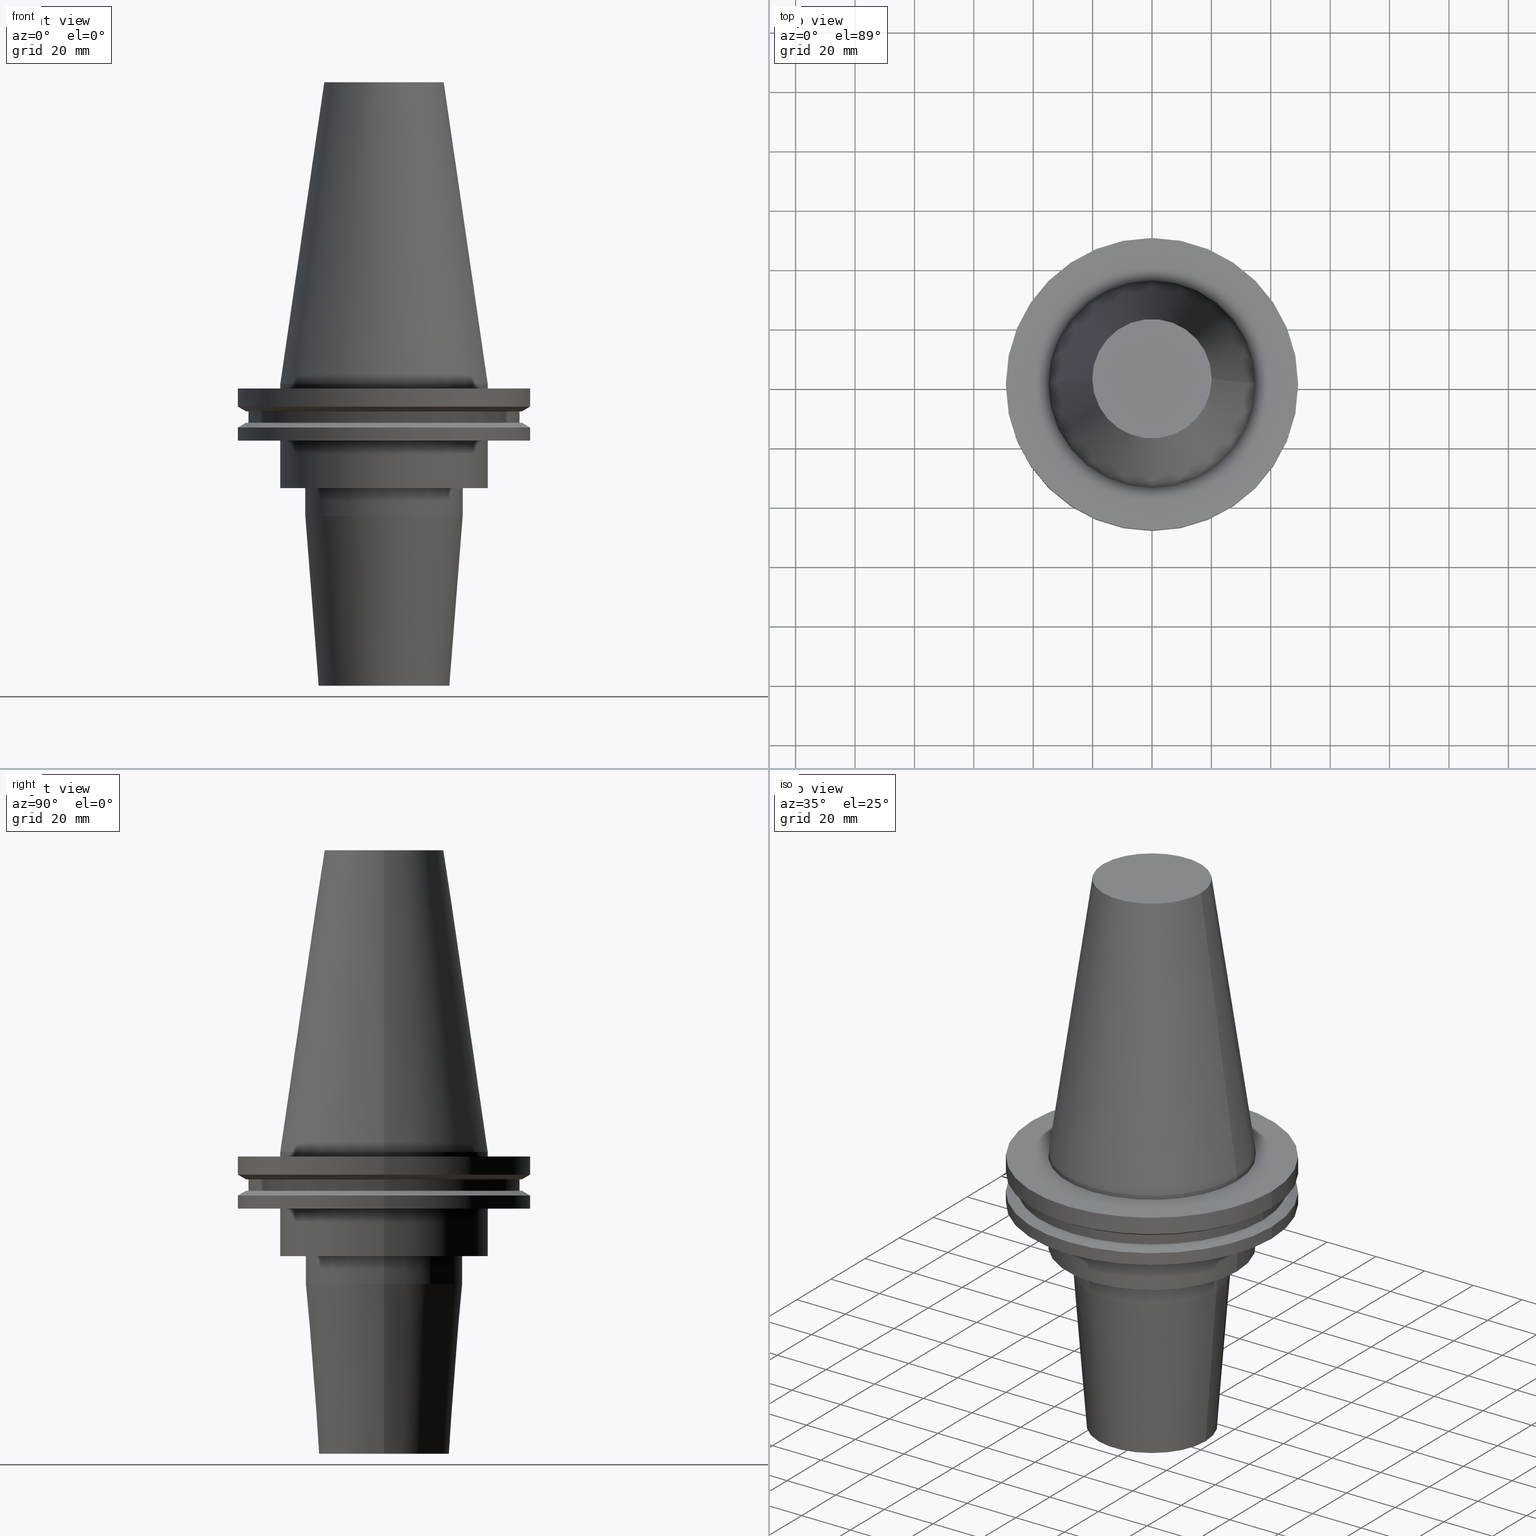
[diagram: canonical four-view strip — front | top / right | iso, engineering-drawing reading convention]
A machine part, canonical four-view strip (front | top / right | iso — engineering-drawing reading convention). The complete STEP part file that produces these views, byte-faithful:
ISO-10303-21;
HEADER;
FILE_DESCRIPTION (( 'STEP AP203' ),
    '1' );
FILE_NAME ('BCV50-SF1_000-4.stp',
    '2022-03-03T17:22:16',
    ( '' ),
    ( '' ),
    'SwSTEP 2.0',
    'SolidWorks 2021',
    '' );
FILE_SCHEMA (( 'CONFIG_CONTROL_DESIGN' ));
ENDSEC;

DATA;
#1 = DIRECTION ( 'NONE',  ( -0.000000000000000000, -0.000000000000000000, 1.000000000000000000 ) ) ;
#2 = ORIENTED_EDGE ( 'NONE', *, *, #461, .F. ) ;
#3 = DIRECTION ( 'NONE',  ( 1.000000000000000000, 0.000000000000000000, 0.000000000000000000 ) ) ;
#4 = PLANE ( 'NONE',  #431 ) ;
#5 = ORIENTED_EDGE ( 'NONE', *, *, #788, .T. ) ;
#6 = EDGE_LOOP ( 'NONE', ( #702, #437, #363, #759 ) ) ;
#7 = EDGE_CURVE ( 'NONE', #585, #619, #387, .T. ) ;
#8 = DIRECTION ( 'NONE',  ( -1.000000000000000000, 0.000000000000000000, -0.000000000000000000 ) ) ;
#9 = AXIS2_PLACEMENT_3D ( 'NONE', #664, #338, #78 ) ;
#10 = CC_DESIGN_APPROVAL ( #378, ( #245 ) ) ;
#11 = DIRECTION ( 'NONE',  ( 0.07845909572783764385, 0.000000000000000000, 0.9969173337331286300 ) ) ;
#12 = AXIS2_PLACEMENT_3D ( 'NONE', #423, #92, #754 ) ;
#13 = CYLINDRICAL_SURFACE ( 'NONE', #160, 49.21499999999999631 ) ;
#14 = AXIS2_PLACEMENT_3D ( 'NONE', #618, #730, #810 ) ;
#15 = ORIENTED_EDGE ( 'NONE', *, *, #822, .T. ) ;
#16 = CARTESIAN_POINT ( 'NONE',  ( -49.21500000000000341, 6.027099222003699404E-15, -7.602389855251287187 ) ) ;
#17 = CARTESIAN_POINT ( 'NONE',  ( 0.000000000000000000, 0.000000000000000000, 101.5999999999999943 ) ) ;
#18 = ORIENTED_EDGE ( 'NONE', *, *, #235, .T. ) ;
#19 = FACE_OUTER_BOUND ( 'NONE', #714, .T. ) ;
#20 = EDGE_CURVE ( 'NONE', #270, #280, #747, .T. ) ;
#21 = ORIENTED_EDGE ( 'NONE', *, *, #346, .F. ) ;
#22 = PERSON_AND_ORGANIZATION_ROLE ( 'classification_officer' ) ;
#23 = APPROVAL_PERSON_ORGANIZATION ( #632, #378, #438 ) ;
#24 = AXIS2_PLACEMENT_3D ( 'NONE', #324, #774, #55 ) ;
#25 = DIRECTION ( 'NONE',  ( -0.000000000000000000, -0.000000000000000000, 1.000000000000000000 ) ) ;
#26 = VECTOR ( 'NONE', #728, 999.9999999999998863 ) ;
#27 = ORIENTED_EDGE ( 'NONE', *, *, #501, .T. ) ;
#28 = CIRCLE ( 'NONE', #331, 34.92499999999999716 ) ;
#29 = COORDINATED_UNIVERSAL_TIME_OFFSET ( 6, 0, .BEHIND. ) ;
#30 = CARTESIAN_POINT ( 'NONE',  ( 0.000000000000000000, 12.69999999999998508, -54.59999999999999432 ) ) ;
#31 = ORIENTED_EDGE ( 'NONE', *, *, #451, .F. ) ;
#32 = DATE_TIME_ROLE ( 'creation_date' ) ;
#33 = ADVANCED_FACE ( 'NONE', ( #269 ), #204, .T. ) ;
#34 = CARTESIAN_POINT ( 'NONE',  ( 0.000000000000000000, 0.000000000000000000, 0.000000000000000000 ) ) ;
#35 = ORIENTED_EDGE ( 'NONE', *, *, #291, .F. ) ;
#36 = DATE_AND_TIME ( #562, #388 ) ;
#37 = EDGE_CURVE ( 'NONE', #818, #835, #391, .T. ) ;
#38 = DIRECTION ( 'NONE',  ( 1.000000000000000000, 0.000000000000000000, 0.000000000000000000 ) ) ;
#39 =( GEOMETRIC_REPRESENTATION_CONTEXT ( 3 ) GLOBAL_UNCERTAINTY_ASSIGNED_CONTEXT ( ( #117 ) ) GLOBAL_UNIT_ASSIGNED_CONTEXT ( ( #441, #425, #306 ) ) REPRESENTATION_CONTEXT ( 'NONE', 'WORKASPACE' ) );
#40 = EDGE_LOOP ( 'NONE', ( #595, #639 ) ) ;
#41 = CIRCLE ( 'NONE', #707, 12.69999999999999218 ) ;
#42 = DATE_AND_TIME ( #624, #610 ) ;
#43 = DIRECTION ( 'NONE',  ( -0.000000000000000000, -0.000000000000000000, 1.000000000000000000 ) ) ;
#44 = EDGE_LOOP ( 'NONE', ( #93, #634 ) ) ;
#45 = FACE_BOUND ( 'NONE', #44, .T. ) ;
#46 = EDGE_CURVE ( 'NONE', #779, #536, #696, .T. ) ;
#47 = EDGE_LOOP ( 'NONE', ( #155, #322, #335, #770 ) ) ;
#48 = LINE ( 'NONE', #188, #216 ) ;
#49 = CARTESIAN_POINT ( 'NONE',  ( 0.000000000000000000, 0.000000000000000000, -101.5999999999999943 ) ) ;
#50 = EDGE_LOOP ( 'NONE', ( #688, #830, #420, #194 ) ) ;
#51 = AXIS2_PLACEMENT_3D ( 'NONE', #90, #488, #606 ) ;
#52 = DATE_AND_TIME ( #819, #200 ) ;
#53 = CARTESIAN_POINT ( 'NONE',  ( -26.50000000000000000, 3.245314017740485765E-15, -35.04999999999999716 ) ) ;
#54 = AXIS2_PLACEMENT_3D ( 'NONE', #34, #296, #221 ) ;
#55 = DIRECTION ( 'NONE',  ( 1.000000000000000000, 0.000000000000000000, 0.000000000000000000 ) ) ;
#56 = ORIENTED_EDGE ( 'NONE', *, *, #291, .T. ) ;
#57 = CARTESIAN_POINT ( 'NONE',  ( 45.64500000000000313, 0.000000000000000000, 101.5999999999999943 ) ) ;
#58 = CARTESIAN_POINT ( 'NONE',  ( 0.000000000000000000, 0.000000000000000000, -54.59999999999998721 ) ) ;
#59 = EDGE_LOOP ( 'NONE', ( #600, #840, #116, #506 ) ) ;
#60 = DIRECTION ( 'NONE',  ( -0.000000000000000000, -0.000000000000000000, 1.000000000000000000 ) ) ;
#61 = APPLICATION_CONTEXT ( 'configuration controlled 3d designs of mechanical parts and assemblies' ) ;
#62 = DIRECTION ( 'NONE',  ( 0.000000000000000000, 0.000000000000000000, -1.000000000000000000 ) ) ;
#63 = EDGE_LOOP ( 'NONE', ( #529, #15, #803, #31 ) ) ;
#64 = CIRCLE ( 'NONE', #593, 49.21499999999998920 ) ;
#65 = DIRECTION ( 'NONE',  ( -0.000000000000000000, -0.000000000000000000, 1.000000000000000000 ) ) ;
#66 = CIRCLE ( 'NONE', #258, 26.50000000000000000 ) ;
#67 = VECTOR ( 'NONE', #534, 1000.000000000000000 ) ;
#68 = VECTOR ( 'NONE', #121, 1000.000000000000000 ) ;
#69 = DIRECTION ( 'NONE',  ( 0.000000000000000000, 0.000000000000000000, -1.000000000000000000 ) ) ;
#70 = DIRECTION ( 'NONE',  ( -0.000000000000000000, -0.000000000000000000, 1.000000000000000000 ) ) ;
#71 = CARTESIAN_POINT ( 'NONE',  ( -49.21499999999999631, 6.027099222003697826E-15, -1.499999999999987566 ) ) ;
#72 = DIRECTION ( 'NONE',  ( -0.000000000000000000, -0.000000000000000000, 1.000000000000000000 ) ) ;
#73 = LINE ( 'NONE', #684, #228 ) ;
#74 = EDGE_CURVE ( 'NONE', #561, #131, #608, .T. ) ;
#75 = EDGE_LOOP ( 'NONE', ( #253, #791, #495, #35 ) ) ;
#76 = LINE ( 'NONE', #340, #784 ) ;
#77 = DIRECTION ( 'NONE',  ( -0.000000000000000000, -0.000000000000000000, 1.000000000000000000 ) ) ;
#78 = DIRECTION ( 'NONE',  ( -1.000000000000000000, 0.000000000000000000, 0.000000000000000000 ) ) ;
#79 = ORIENTED_EDGE ( 'NONE', *, *, #262, .F. ) ;
#80 = CYLINDRICAL_SURFACE ( 'NONE', #243, 34.92499999999999716 ) ;
#81 = AXIS2_PLACEMENT_3D ( 'NONE', #801, #485, #88 ) ;
#82 = CC_DESIGN_SECURITY_CLASSIFICATION ( #527, ( #125 ) ) ;
#83 = AXIS2_PLACEMENT_3D ( 'NONE', #242, #238, #580 ) ;
#84 = CIRCLE ( 'NONE', #568, 20.10819343178871321 ) ;
#85 = CYLINDRICAL_SURFACE ( 'NONE', #802, 49.21499999999998920 ) ;
#86 = FACE_BOUND ( 'NONE', #328, .T. ) ;
#87 = ADVANCED_FACE ( 'NONE', ( #668 ), #189, .T. ) ;
#88 = DIRECTION ( 'NONE',  ( 1.000000000000000000, 0.000000000000000000, 0.000000000000000000 ) ) ;
#89 = ORIENTED_EDGE ( 'NONE', *, *, #653, .T. ) ;
#90 = CARTESIAN_POINT ( 'NONE',  ( 0.000000000000000000, 0.000000000000000000, -44.42207868720844743 ) ) ;
#91 = ADVANCED_FACE ( 'NONE', ( #265 ), #813, .F. ) ;
#92 = DIRECTION ( 'NONE',  ( -0.000000000000000000, -0.000000000000000000, 1.000000000000000000 ) ) ;
#93 = ORIENTED_EDGE ( 'NONE', *, *, #138, .T. ) ;
#94 = APPLICATION_PROTOCOL_DEFINITION ( 'international standard', 'config_control_design', 1994, #704 ) ;
#95 = CC_DESIGN_DATE_AND_TIME_ASSIGNMENT ( #285, #558, ( #527 ) ) ;
#96 = AXIS2_PLACEMENT_3D ( 'NONE', #620, #215, #149 ) ;
#97 = CIRCLE ( 'NONE', #12, 49.21499999999999631 ) ;
#98 = CARTESIAN_POINT ( 'NONE',  ( 0.000000000000000000, 0.000000000000000000, 101.5999999999999943 ) ) ;
#99 = ADVANCED_FACE ( 'NONE', ( #198 ), #13, .T. ) ;
#100 = VERTEX_POINT ( 'NONE', #741 ) ;
#101 = VECTOR ( 'NONE', #540, 999.9999999999998863 ) ;
#102 = MECHANICAL_CONTEXT ( 'NONE', #704, 'mechanical' ) ;
#103 = DIRECTION ( 'NONE',  ( 1.000000000000000000, 0.000000000000000000, 0.000000000000000000 ) ) ;
#104 = ORIENTED_EDGE ( 'NONE', *, *, #353, .T. ) ;
#105 = ADVANCED_FACE ( 'NONE', ( #402 ), #412, .T. ) ;
#106 = APPROVAL_DATE_TIME ( #36, #378 ) ;
#107 = CARTESIAN_POINT ( 'NONE',  ( -34.92499999999999716, 4.277078946022130887E-15, 101.5999999999999943 ) ) ;
#108 = VERTEX_POINT ( 'NONE', #744 ) ;
#109 = CARTESIAN_POINT ( 'NONE',  ( 0.000000000000000000, 0.000000000000000000, -13.05499999999999794 ) ) ;
#110 = VECTOR ( 'NONE', #793, 1000.000000000000000 ) ;
#111 = CIRCLE ( 'NONE', #541, 26.50000000000000000 ) ;
#112 = VERTEX_POINT ( 'NONE', #342 ) ;
#113 = AXIS2_PLACEMENT_3D ( 'NONE', #584, #843, #119 ) ;
#114 = VECTOR ( 'NONE', #337, 1000.000000000000114 ) ;
#115 = DIRECTION ( 'NONE',  ( 1.000000000000000000, 0.000000000000000000, 0.000000000000000000 ) ) ;
#116 = ORIENTED_EDGE ( 'NONE', *, *, #208, .T. ) ;
#117 = UNCERTAINTY_MEASURE_WITH_UNIT (LENGTH_MEASURE( 1.000000000000000082E-05 ), #441, 'distance_accuracy_value', 'NONE');
#118 = CARTESIAN_POINT ( 'NONE',  ( 0.000000000000000000, 0.000000000000000000, 101.5999999999999943 ) ) ;
#119 = DIRECTION ( 'NONE',  ( 1.000000000000000000, 0.000000000000000000, 0.000000000000000000 ) ) ;
#120 = ORIENTED_EDGE ( 'NONE', *, *, #653, .F. ) ;
#121 = DIRECTION ( 'NONE',  ( -0.8660254037844273833, 1.060575238724893110E-16, 0.5000000000000195399 ) ) ;
#122 = CARTESIAN_POINT ( 'NONE',  ( 0.000000000000000000, 46.43919780457007818, -9.204999999999998295 ) ) ;
#123 = ORIENTED_EDGE ( 'NONE', *, *, #576, .T. ) ;
#124 = ADVANCED_FACE ( 'NONE', ( #615 ), #682, .T. ) ;
#125 = PRODUCT_DEFINITION_FORMATION_WITH_SPECIFIED_SOURCE ( 'ANY', '', #511, .NOT_KNOWN. ) ;
#126 = PLANE ( 'NONE',  #288 ) ;
#127 = DIRECTION ( 'NONE',  ( -0.000000000000000000, -0.000000000000000000, 1.000000000000000000 ) ) ;
#128 = ORIENTED_EDGE ( 'NONE', *, *, #395, .T. ) ;
#129 = CARTESIAN_POINT ( 'NONE',  ( 0.000000000000000000, 0.000000000000000000, -35.04999999999999716 ) ) ;
#130 = CARTESIAN_POINT ( 'NONE',  ( 0.000000000000000000, 0.000000000000000000, -35.04999999999999716 ) ) ;
#131 = VERTEX_POINT ( 'NONE', #736 ) ;
#132 = CARTESIAN_POINT ( 'NONE',  ( -12.69999999999999218, 1.555301434917137644E-15, -101.5999999999999943 ) ) ;
#133 = CARTESIAN_POINT ( 'NONE',  ( 46.43919780457007818, 0.000000000000000000, -9.204999999999991189 ) ) ;
#134 = DIRECTION ( 'NONE',  ( 1.000000000000000000, 0.000000000000000000, 0.000000000000000000 ) ) ;
#135 = AXIS2_PLACEMENT_3D ( 'NONE', #746, #356, #418 ) ;
#136 = DIRECTION ( 'NONE',  ( -0.000000000000000000, -0.000000000000000000, 1.000000000000000000 ) ) ;
#137 = CIRCLE ( 'NONE', #625, 12.69999999999998508 ) ;
#138 = EDGE_CURVE ( 'NONE', #219, #718, #150, .T. ) ;
#139 = CARTESIAN_POINT ( 'NONE',  ( 45.64500000000000313, 0.000000000000000000, -13.05499999999999794 ) ) ;
#140 = DIRECTION ( 'NONE',  ( 1.000000000000000000, 0.000000000000000000, 0.000000000000000000 ) ) ;
#141 = DIRECTION ( 'NONE',  ( -0.000000000000000000, -0.000000000000000000, 1.000000000000000000 ) ) ;
#142 = CARTESIAN_POINT ( 'NONE',  ( 49.21499999999998920, 6.027099222003697037E-15, -14.65761014474876944 ) ) ;
#143 = CARTESIAN_POINT ( 'NONE',  ( 0.000000000000000000, 0.000000000000000000, 0.000000000000000000 ) ) ;
#144 = FACE_OUTER_BOUND ( 'NONE', #573, .T. ) ;
#145 = CC_DESIGN_PERSON_AND_ORGANIZATION_ASSIGNMENT ( #694, #169, ( #511 ) ) ;
#146 = DIRECTION ( 'NONE',  ( 1.000000000000000000, 0.000000000000000000, 0.000000000000000000 ) ) ;
#147 = ORIENTED_EDGE ( 'NONE', *, *, #339, .T. ) ;
#148 = EDGE_CURVE ( 'NONE', #692, #561, #73, .T. ) ;
#149 = DIRECTION ( 'NONE',  ( 1.000000000000000000, 0.000000000000000000, 0.000000000000000000 ) ) ;
#150 = CIRCLE ( 'NONE', #271, 45.64500000000000313 ) ;
#151 = CARTESIAN_POINT ( 'NONE',  ( 0.000000000000000000, 0.000000000000000000, -35.04999999999999716 ) ) ;
#152 = EDGE_LOOP ( 'NONE', ( #211, #128 ) ) ;
#153 = DIRECTION ( 'NONE',  ( 1.000000000000000000, 0.000000000000000000, 0.000000000000000000 ) ) ;
#154 = DIRECTION ( 'NONE',  ( -0.000000000000000000, -0.000000000000000000, 1.000000000000000000 ) ) ;
#155 = ORIENTED_EDGE ( 'NONE', *, *, #740, .T. ) ;
#156 = COORDINATED_UNIVERSAL_TIME_OFFSET ( 6, 0, .BEHIND. ) ;
#157 = FACE_OUTER_BOUND ( 'NONE', #50, .T. ) ;
#158 = VERTEX_POINT ( 'NONE', #677 ) ;
#159 = APPROVAL_ROLE ( '' ) ;
#160 = AXIS2_PLACEMENT_3D ( 'NONE', #482, #277, #206 ) ;
#161 = CIRCLE ( 'NONE', #135, 46.43919780457007818 ) ;
#162 = ADVANCED_FACE ( 'NONE', ( #354 ), #85, .T. ) ;
#163 = FACE_OUTER_BOUND ( 'NONE', #815, .T. ) ;
#164 = ORIENTED_EDGE ( 'NONE', *, *, #383, .F. ) ;
#165 = AXIS2_PLACEMENT_3D ( 'NONE', #151, #1, #146 ) ;
#166 = CARTESIAN_POINT ( 'NONE',  ( 0.000000000000000000, 0.000000000000000000, -9.204999999999991189 ) ) ;
#167 = PRODUCT_DEFINITION_SHAPE ( 'NONE', 'NONE',  #245 ) ;
#168 = ORIENTED_EDGE ( 'NONE', *, *, #701, .F. ) ;
#169 = PERSON_AND_ORGANIZATION_ROLE ( 'design_owner' ) ;
#170 = DIRECTION ( 'NONE',  ( -0.000000000000000000, -0.000000000000000000, 1.000000000000000000 ) ) ;
#171 = ORIENTED_EDGE ( 'NONE', *, *, #599, .T. ) ;
#172 = PERSON_AND_ORGANIZATION ( #310, #345 ) ;
#173 = ADVANCED_FACE ( 'NONE', ( #408 ), #697, .T. ) ;
#174 = DIRECTION ( 'NONE',  ( 1.000000000000000000, 0.000000000000000000, 0.000000000000000000 ) ) ;
#175 = CIRCLE ( 'NONE', #51, 26.50000000000000000 ) ;
#176 = CIRCLE ( 'NONE', #302, 49.21499999999999631 ) ;
#177 = ORIENTED_EDGE ( 'NONE', *, *, #727, .F. ) ;
#178 = DIRECTION ( 'NONE',  ( 1.000000000000000000, 0.000000000000000000, 0.000000000000000000 ) ) ;
#179 = FACE_OUTER_BOUND ( 'NONE', #475, .T. ) ;
#180 = EDGE_LOOP ( 'NONE', ( #787, #460 ) ) ;
#181 = DIRECTION ( 'NONE',  ( 1.000000000000000000, 0.000000000000000000, 0.000000000000000000 ) ) ;
#182 = DIRECTION ( 'NONE',  ( -0.000000000000000000, -0.000000000000000000, 1.000000000000000000 ) ) ;
#183 = ORIENTED_EDGE ( 'NONE', *, *, #641, .F. ) ;
#184 = CARTESIAN_POINT ( 'NONE',  ( 0.000000000000000000, 0.000000000000000000, -14.65761014474876944 ) ) ;
#185 = CARTESIAN_POINT ( 'NONE',  ( 46.43919780457007818, 5.857130358318725715E-15, -13.05499999999999794 ) ) ;
#186 = EDGE_LOOP ( 'NONE', ( #359, #616 ) ) ;
#187 = APPROVAL_PERSON_ORGANIZATION ( #220, #809, #752 ) ;
#188 = CARTESIAN_POINT ( 'NONE',  ( 46.43919780457007818, 0.000000000000000000, -9.204999999999991189 ) ) ;
#189 = CONICAL_SURFACE ( 'NONE', #319, 34.92499999999999005, 0.1448138465474119452 ) ;
#190 = CARTESIAN_POINT ( 'NONE',  ( 0.000000000000000000, 0.000000000000000000, -101.5999999999999943 ) ) ;
#191 = EDGE_LOOP ( 'NONE', ( #168, #164, #434, #147 ) ) ;
#192 = CARTESIAN_POINT ( 'NONE',  ( 34.92499999999999716, 0.000000000000000000, -35.04999999999999716 ) ) ;
#193 = DIRECTION ( 'NONE',  ( 1.000000000000000000, 0.000000000000000000, 0.000000000000000000 ) ) ;
#194 = ORIENTED_EDGE ( 'NONE', *, *, #477, .F. ) ;
#195 = EDGE_CURVE ( 'NONE', #158, #692, #763, .T. ) ;
#196 = CARTESIAN_POINT ( 'NONE',  ( 0.000000000000000000, 45.64500000000000313, -13.05499999999999794 ) ) ;
#197 = DIRECTION ( 'NONE',  ( 1.000000000000000000, 0.000000000000000000, 0.000000000000000000 ) ) ;
#198 = FACE_OUTER_BOUND ( 'NONE', #63, .T. ) ;
#199 = VERTEX_POINT ( 'NONE', #427 ) ;
#200 = LOCAL_TIME ( 11, 22, 16.00000000000000000, #156 ) ;
#201 = CARTESIAN_POINT ( 'NONE',  ( 49.21499999999998920, 0.000000000000000000, 101.5999999999999943 ) ) ;
#202 = AXIS2_PLACEMENT_3D ( 'NONE', #523, #644, #397 ) ;
#203 = CIRCLE ( 'NONE', #349, 46.43919780457007818 ) ;
#204 = CONICAL_SURFACE ( 'NONE', #9, 49.21499999999998920, 1.047197551196554333 ) ;
#205 = CARTESIAN_POINT ( 'NONE',  ( 34.92499999999999005, 4.277078946022130098E-15, 0.000000000000000000 ) ) ;
#206 = DIRECTION ( 'NONE',  ( 1.000000000000000000, 0.000000000000000000, 0.000000000000000000 ) ) ;
#207 = LINE ( 'NONE', #538, #286 ) ;
#208 = EDGE_CURVE ( 'NONE', #244, #131, #626, .T. ) ;
#209 = ADVANCED_FACE ( 'NONE', ( #823 ), #308, .F. ) ;
#210 = DIRECTION ( 'NONE',  ( -1.000000000000000000, 0.000000000000000000, 0.000000000000000000 ) ) ;
#211 = ORIENTED_EDGE ( 'NONE', *, *, #383, .T. ) ;
#212 = DIRECTION ( 'NONE',  ( -0.000000000000000000, -0.000000000000000000, 1.000000000000000000 ) ) ;
#213 = ORIENTED_EDGE ( 'NONE', *, *, #733, .T. ) ;
#214 = ORIENTED_EDGE ( 'NONE', *, *, #262, .T. ) ;
#215 = DIRECTION ( 'NONE',  ( -0.000000000000000000, -0.000000000000000000, 1.000000000000000000 ) ) ;
#216 = VECTOR ( 'NONE', #780, 1000.000000000000000 ) ;
#217 = VECTOR ( 'NONE', #260, 1000.000000000000000 ) ;
#218 = CARTESIAN_POINT ( 'NONE',  ( 0.000000000000000000, 0.000000000000000000, -101.5999999999999943 ) ) ;
#219 = VERTEX_POINT ( 'NONE', #432 ) ;
#220 = PERSON_AND_ORGANIZATION ( #310, #345 ) ;
#221 = DIRECTION ( 'NONE',  ( 1.000000000000000000, 0.000000000000000000, 0.000000000000000000 ) ) ;
#222 = EDGE_LOOP ( 'NONE', ( #656, #807, #370, #767 ) ) ;
#223 = COORDINATED_UNIVERSAL_TIME_OFFSET ( 6, 0, .BEHIND. ) ;
#224 = ADVANCED_FACE ( 'NONE', ( #365 ), #369, .T. ) ;
#225 = DIRECTION ( 'NONE',  ( -0.07845909572783764385, 9.608468044709212160E-18, 0.9969173337331286300 ) ) ;
#226 = EDGE_LOOP ( 'NONE', ( #517, #18, #588, #737 ) ) ;
#227 = CARTESIAN_POINT ( 'NONE',  ( -45.64500000000000313, 5.589900314708094957E-15, -13.05499999999999794 ) ) ;
#228 = VECTOR ( 'NONE', #70, 1000.000000000000000 ) ;
#229 = CIRCLE ( 'NONE', #648, 45.64500000000000313 ) ;
#230 = AXIS2_PLACEMENT_3D ( 'NONE', #494, #498, #750 ) ;
#231 = DIRECTION ( 'NONE',  ( -0.000000000000000000, -0.000000000000000000, 1.000000000000000000 ) ) ;
#232 = EDGE_LOOP ( 'NONE', ( #79, #27, #256, #751 ) ) ;
#233 = DIRECTION ( 'NONE',  ( 0.000000000000000000, 0.000000000000000000, 1.000000000000000000 ) ) ;
#234 = DIRECTION ( 'NONE',  ( -0.000000000000000000, -0.000000000000000000, 1.000000000000000000 ) ) ;
#235 = EDGE_CURVE ( 'NONE', #585, #673, #638, .T. ) ;
#236 = ORIENTED_EDGE ( 'NONE', *, *, #246, .T. ) ;
#237 = APPLICATION_PROTOCOL_DEFINITION ( 'international standard', 'config_control_design', 1994, #61 ) ;
#238 = DIRECTION ( 'NONE',  ( -0.000000000000000000, -0.000000000000000000, 1.000000000000000000 ) ) ;
#239 = ORIENTED_EDGE ( 'NONE', *, *, #318, .F. ) ;
#240 = EDGE_CURVE ( 'NONE', #673, #377, #417, .T. ) ;
#241 = EDGE_CURVE ( 'NONE', #536, #779, #543, .T. ) ;
#242 = CARTESIAN_POINT ( 'NONE',  ( 0.000000000000000000, 0.000000000000000000, -19.04999999999999716 ) ) ;
#243 = AXIS2_PLACEMENT_3D ( 'NONE', #481, #141, #533 ) ;
#244 = VERTEX_POINT ( 'NONE', #436 ) ;
#245 = PRODUCT_DEFINITION ( 'UNKNOWN', '', #125, #589 ) ;
#246 = EDGE_CURVE ( 'NONE', #158, #416, #487, .T. ) ;
#247 = DIRECTION ( 'NONE',  ( 1.000000000000000000, 0.000000000000000000, 0.000000000000000000 ) ) ;
#248 = CARTESIAN_POINT ( 'NONE',  ( 0.000000000000000000, 0.000000000000000000, -101.5999999999999943 ) ) ;
#249 = ORIENTED_EDGE ( 'NONE', *, *, #576, .F. ) ;
#250 = DIRECTION ( 'NONE',  ( -0.000000000000000000, -0.000000000000000000, 1.000000000000000000 ) ) ;
#251 = EDGE_CURVE ( 'NONE', #718, #219, #429, .T. ) ;
#252 = CARTESIAN_POINT ( 'NONE',  ( -49.21499999999998920, 6.027099222003697037E-15, 101.5999999999999943 ) ) ;
#253 = ORIENTED_EDGE ( 'NONE', *, *, #822, .F. ) ;
#254 = DIRECTION ( 'NONE',  ( -0.000000000000000000, -0.000000000000000000, 1.000000000000000000 ) ) ;
#255 = CARTESIAN_POINT ( 'NONE',  ( 0.000000000000000000, 0.000000000000000000, -7.602389855251287187 ) ) ;
#256 = ORIENTED_EDGE ( 'NONE', *, *, #37, .T. ) ;
#257 = AXIS2_PLACEMENT_3D ( 'NONE', #687, #234, #303 ) ;
#258 = AXIS2_PLACEMENT_3D ( 'NONE', #130, #182, #327 ) ;
#259 = LINE ( 'NONE', #468, #26 ) ;
#260 = DIRECTION ( 'NONE',  ( -0.000000000000000000, -0.000000000000000000, 1.000000000000000000 ) ) ;
#261 = ORIENTED_EDGE ( 'NONE', *, *, #37, .F. ) ;
#262 = EDGE_CURVE ( 'NONE', #380, #755, #651, .T. ) ;
#263 = DIRECTION ( 'NONE',  ( 1.000000000000000000, 0.000000000000000000, 0.000000000000000000 ) ) ;
#264 = LINE ( 'NONE', #276, #851 ) ;
#265 = FACE_OUTER_BOUND ( 'NONE', #575, .T. ) ;
#266 = ORIENTED_EDGE ( 'NONE', *, *, #46, .T. ) ;
#267 = CARTESIAN_POINT ( 'NONE',  ( 12.69999999999999218, 0.000000000000000000, -101.5999999999999943 ) ) ;
#268 = FACE_OUTER_BOUND ( 'NONE', #581, .T. ) ;
#269 = FACE_OUTER_BOUND ( 'NONE', #232, .T. ) ;
#270 = VERTEX_POINT ( 'NONE', #829 ) ;
#271 = AXIS2_PLACEMENT_3D ( 'NONE', #419, #806, #415 ) ;
#272 = AXIS2_PLACEMENT_3D ( 'NONE', #577, #586, #178 ) ;
#273 = DIRECTION ( 'NONE',  ( -0.000000000000000000, -0.000000000000000000, 1.000000000000000000 ) ) ;
#274 = ADVANCED_FACE ( 'NONE', ( #820 ), #700, .T. ) ;
#275 = AXIS2_PLACEMENT_3D ( 'NONE', #109, #25, #569 ) ;
#276 = CARTESIAN_POINT ( 'NONE',  ( -34.92499999999999005, 4.277078946022130098E-15, 101.5999999999999943 ) ) ;
#277 = DIRECTION ( 'NONE',  ( -0.000000000000000000, -0.000000000000000000, 1.000000000000000000 ) ) ;
#278 = ORIENTED_EDGE ( 'NONE', *, *, #20, .T. ) ;
#279 = CARTESIAN_POINT ( 'NONE',  ( -45.64500000000000313, 5.589900314708094957E-15, 101.5999999999999943 ) ) ;
#280 = VERTEX_POINT ( 'NONE', #490 ) ;
#281 = DIRECTION ( 'NONE',  ( -0.8660254037844169472, 0.000000000000000000, -0.5000000000000375255 ) ) ;
#282 = ADVANCED_FACE ( 'NONE', ( #157 ), #621, .T. ) ;
#283 = ORIENTED_EDGE ( 'NONE', *, *, #461, .T. ) ;
#284 = EDGE_LOOP ( 'NONE', ( #120, #742, #123, #440 ) ) ;
#285 = DATE_AND_TIME ( #435, #430 ) ;
#286 = VECTOR ( 'NONE', #406, 1000.000000000000000 ) ;
#287 = CIRCLE ( 'NONE', #514, 49.21499999999998920 ) ;
#288 = AXIS2_PLACEMENT_3D ( 'NONE', #518, #392, #332 ) ;
#289 = FACE_OUTER_BOUND ( 'NONE', #222, .T. ) ;
#290 = EDGE_LOOP ( 'NONE', ( #555, #532, #570, #564 ) ) ;
#291 = EDGE_CURVE ( 'NONE', #711, #293, #97, .T. ) ;
#292 = CARTESIAN_POINT ( 'NONE',  ( 0.000000000000000000, 0.000000000000000000, 101.5999999999999943 ) ) ;
#293 = VERTEX_POINT ( 'NONE', #358 ) ;
#294 = ADVANCED_FACE ( 'NONE', ( #289 ), #691, .T. ) ;
#295 = SECURITY_CLASSIFICATION_LEVEL ( 'unclassified' ) ;
#296 = DIRECTION ( 'NONE',  ( -0.000000000000000000, -0.000000000000000000, 1.000000000000000000 ) ) ;
#297 = ORIENTED_EDGE ( 'NONE', *, *, #646, .T. ) ;
#298 = PERSON_AND_ORGANIZATION ( #310, #345 ) ;
#299 = CC_DESIGN_PERSON_AND_ORGANIZATION_ASSIGNMENT ( #756, #831, ( #125 ) ) ;
#300 = VECTOR ( 'NONE', #225, 999.9999999999998863 ) ;
#301 = AXIS2_PLACEMENT_3D ( 'NONE', #738, #410, #352 ) ;
#302 = AXIS2_PLACEMENT_3D ( 'NONE', #393, #769, #781 ) ;
#303 = DIRECTION ( 'NONE',  ( 1.000000000000000000, 0.000000000000000000, 0.000000000000000000 ) ) ;
#304 = VERTEX_POINT ( 'NONE', #757 ) ;
#305 = AXIS2_PLACEMENT_3D ( 'NONE', #572, #170, #633 ) ;
#306 =( NAMED_UNIT ( * ) SI_UNIT ( $, .STERADIAN. ) SOLID_ANGLE_UNIT ( ) );
#307 = ADVANCED_FACE ( 'NONE', ( #163, #455 ), #839, .F. ) ;
#308 = PLANE ( 'NONE',  #344 ) ;
#309 = ORIENTED_EDGE ( 'NONE', *, *, #841, .F. ) ;
#310 = PERSON ( 'UNSPECIFIED', 'UNSPECIFIED', 'UNSPECIFIED', ('UNSPECIFIED'), ('UNSPECIFIED'), ('UNSPECIFIED') ) ;
#311 = PLANE ( 'NONE',  #800 ) ;
#312 = ADVANCED_FACE ( 'NONE', ( #650 ), #321, .T. ) ;
#313 = EDGE_LOOP ( 'NONE', ( #21, #611 ) ) ;
#314 = CARTESIAN_POINT ( 'NONE',  ( -34.92499999999999716, 4.277078946022130887E-15, -19.04999999999999716 ) ) ;
#315 = DIRECTION ( 'NONE',  ( -0.000000000000000000, -0.000000000000000000, 1.000000000000000000 ) ) ;
#316 = AXIS2_PLACEMENT_3D ( 'NONE', #190, #655, #386 ) ;
#317 = ORIENTED_EDGE ( 'NONE', *, *, #556, .F. ) ;
#318 = EDGE_CURVE ( 'NONE', #304, #726, #679, .T. ) ;
#319 = AXIS2_PLACEMENT_3D ( 'NONE', #143, #545, #210 ) ;
#320 = DIRECTION ( 'NONE',  ( 1.000000000000000000, 0.000000000000000000, 0.000000000000000000 ) ) ;
#321 = CYLINDRICAL_SURFACE ( 'NONE', #348, 49.21499999999999631 ) ;
#322 = ORIENTED_EDGE ( 'NONE', *, *, #148, .T. ) ;
#323 = CYLINDRICAL_SURFACE ( 'NONE', #773, 49.21499999999998920 ) ;
#324 = CARTESIAN_POINT ( 'NONE',  ( 0.000000000000000000, 49.21499999999998920, -19.04999999999999716 ) ) ;
#325 = ORIENTED_EDGE ( 'NONE', *, *, #698, .F. ) ;
#326 = CARTESIAN_POINT ( 'NONE',  ( 0.000000000000000000, 0.000000000000000000, -19.04999999999999716 ) ) ;
#327 = DIRECTION ( 'NONE',  ( 1.000000000000000000, 0.000000000000000000, 0.000000000000000000 ) ) ;
#328 = EDGE_LOOP ( 'NONE', ( #325, #398 ) ) ;
#329 = AXIS2_PLACEMENT_3D ( 'NONE', #292, #560, #505 ) ;
#330 = AXIS2_PLACEMENT_3D ( 'NONE', #716, #849, #454 ) ;
#331 = AXIS2_PLACEMENT_3D ( 'NONE', #129, #583, #247 ) ;
#332 = DIRECTION ( 'NONE',  ( -1.000000000000000000, 0.000000000000000000, -0.000000000000000000 ) ) ;
#333 = DIRECTION ( 'NONE',  ( -1.000000000000000000, 0.000000000000000000, 0.000000000000000000 ) ) ;
#334 = CARTESIAN_POINT ( 'NONE',  ( 0.000000000000000000, 0.000000000000000000, 101.5999999999999943 ) ) ;
#335 = ORIENTED_EDGE ( 'NONE', *, *, #422, .F. ) ;
#336 = PLANE ( 'NONE',  #758 ) ;
#337 = DIRECTION ( 'NONE',  ( 0.8660254037844169472, 1.060575238724880168E-16, -0.5000000000000375255 ) ) ;
#338 = DIRECTION ( 'NONE',  ( 0.000000000000000000, 0.000000000000000000, -1.000000000000000000 ) ) ;
#339 = EDGE_CURVE ( 'NONE', #199, #108, #720, .T. ) ;
#340 = CARTESIAN_POINT ( 'NONE',  ( -49.21499999999999631, 6.027099222003697826E-15, 101.5999999999999943 ) ) ;
#341 = CARTESIAN_POINT ( 'NONE',  ( 22.00000000000000000, 0.000000000000000000, -101.5999999999999943 ) ) ;
#342 = CARTESIAN_POINT ( 'NONE',  ( 49.21499999999998920, 0.000000000000000000, -19.04999999999999716 ) ) ;
#343 = ORIENTED_EDGE ( 'NONE', *, *, #372, .T. ) ;
#344 = AXIS2_PLACEMENT_3D ( 'NONE', #30, #439, #103 ) ;
#345 = ORGANIZATION ( 'UNSPECIFIED', 'UNSPECIFIED', '' ) ;
#346 = EDGE_CURVE ( 'NONE', #416, #158, #771, .T. ) ;
#347 = LINE ( 'NONE', #614, #678 ) ;
#348 = AXIS2_PLACEMENT_3D ( 'NONE', #834, #640, #710 ) ;
#349 = AXIS2_PLACEMENT_3D ( 'NONE', #452, #443, #115 ) ;
#350 = DIRECTION ( 'NONE',  ( -0.000000000000000000, -0.000000000000000000, 1.000000000000000000 ) ) ;
#351 = ORIENTED_EDGE ( 'NONE', *, *, #422, .T. ) ;
#352 = DIRECTION ( 'NONE',  ( 1.000000000000000000, 0.000000000000000000, 0.000000000000000000 ) ) ;
#353 = EDGE_CURVE ( 'NONE', #699, #835, #717, .T. ) ;
#354 = FACE_OUTER_BOUND ( 'NONE', #394, .T. ) ;
#355 = ORIENTED_EDGE ( 'NONE', *, *, #582, .T. ) ;
#356 = DIRECTION ( 'NONE',  ( -0.000000000000000000, -0.000000000000000000, 1.000000000000000000 ) ) ;
#357 = EDGE_CURVE ( 'NONE', #377, #673, #459, .T. ) ;
#358 = CARTESIAN_POINT ( 'NONE',  ( 49.21499999999999631, 0.000000000000000000, -1.499999999999987566 ) ) ;
#359 = ORIENTED_EDGE ( 'NONE', *, *, #357, .T. ) ;
#360 = PERSON_AND_ORGANIZATION_ROLE ( 'creator' ) ;
#361 = CIRCLE ( 'NONE', #301, 49.21500000000000341 ) ;
#362 = DIRECTION ( 'NONE',  ( -0.000000000000000000, -0.000000000000000000, 1.000000000000000000 ) ) ;
#363 = ORIENTED_EDGE ( 'NONE', *, *, #846, .T. ) ;
#364 = APPROVAL_STATUS ( 'not_yet_approved' ) ;
#365 = FACE_OUTER_BOUND ( 'NONE', #47, .T. ) ;
#366 = ADVANCED_FACE ( 'NONE', ( #466 ), #721, .F. ) ;
#367 = ORIENTED_EDGE ( 'NONE', *, *, #346, .T. ) ;
#368 = DIRECTION ( 'NONE',  ( 1.000000000000000000, 0.000000000000000000, 0.000000000000000000 ) ) ;
#369 = CYLINDRICAL_SURFACE ( 'NONE', #850, 26.50000000000000000 ) ;
#370 = ORIENTED_EDGE ( 'NONE', *, *, #777, .T. ) ;
#371 = COORDINATED_UNIVERSAL_TIME_OFFSET ( 6, 0, .BEHIND. ) ;
#372 = EDGE_CURVE ( 'NONE', #293, #711, #176, .T. ) ;
#373 = MANIFOLD_SOLID_BREP ( 'BA', #374 ) ;
#374 = CLOSED_SHELL ( 'NONE', ( #91, #553, #224, #282, #99, #124, #105, #33, #661, #764, #87, #413, #493, #690, #294, #307, #162, #549, #792, #274, #433, #703, #312, #674, #708, #173, #447, #510, #366, #209 ) ) ;
#375 = DIRECTION ( 'NONE',  ( -0.000000000000000000, -0.000000000000000000, 1.000000000000000000 ) ) ;
#376 = AXIS2_PLACEMENT_3D ( 'NONE', #739, #77, #799 ) ;
#377 = VERTEX_POINT ( 'NONE', #658 ) ;
#378 = APPROVAL ( #364, 'UNSPECIFIED' ) ;
#379 = DIRECTION ( 'NONE',  ( -0.000000000000000000, -0.000000000000000000, 1.000000000000000000 ) ) ;
#380 = VERTEX_POINT ( 'NONE', #185 ) ;
#381 = FACE_OUTER_BOUND ( 'NONE', #180, .T. ) ;
#382 = DIRECTION ( 'NONE',  ( -0.000000000000000000, -0.000000000000000000, 1.000000000000000000 ) ) ;
#383 = EDGE_CURVE ( 'NONE', #706, #627, #594, .T. ) ;
#384 = ORIENTED_EDGE ( 'NONE', *, *, #74, .T. ) ;
#385 = FACE_OUTER_BOUND ( 'NONE', #659, .T. ) ;
#386 = DIRECTION ( 'NONE',  ( 1.000000000000000000, 0.000000000000000000, 0.000000000000000000 ) ) ;
#387 = CIRCLE ( 'NONE', #828, 34.92499999999999716 ) ;
#388 = LOCAL_TIME ( 11, 22, 16.00000000000000000, #371 ) ;
#389 = ORIENTED_EDGE ( 'NONE', *, *, #497, .F. ) ;
#390 = VECTOR ( 'NONE', #11, 999.9999999999998863 ) ;
#391 = CIRCLE ( 'NONE', #500, 49.21499999999998920 ) ;
#392 = DIRECTION ( 'NONE',  ( 0.000000000000000000, 0.000000000000000000, -1.000000000000000000 ) ) ;
#393 = CARTESIAN_POINT ( 'NONE',  ( 0.000000000000000000, 0.000000000000000000, -1.499999999999987566 ) ) ;
#394 = EDGE_LOOP ( 'NONE', ( #642, #782, #5, #509 ) ) ;
#395 = EDGE_CURVE ( 'NONE', #627, #706, #41, .T. ) ;
#396 = CARTESIAN_POINT ( 'NONE',  ( 0.000000000000000000, 0.000000000000000000, 0.000000000000000000 ) ) ;
#397 = DIRECTION ( 'NONE',  ( 1.000000000000000000, 0.000000000000000000, 0.000000000000000000 ) ) ;
#398 = ORIENTED_EDGE ( 'NONE', *, *, #733, .F. ) ;
#399 = CARTESIAN_POINT ( 'NONE',  ( -34.92499999999999716, 4.277078946022130887E-15, -35.04999999999999716 ) ) ;
#400 = EDGE_CURVE ( 'NONE', #748, #491, #528, .T. ) ;
#401 = FACE_OUTER_BOUND ( 'NONE', #6, .T. ) ;
#402 = FACE_OUTER_BOUND ( 'NONE', #290, .T. ) ;
#403 = AXIS2_PLACEMENT_3D ( 'NONE', #760, #233, #368 ) ;
#404 = AXIS2_PLACEMENT_3D ( 'NONE', #662, #69, #333 ) ;
#405 = AXIS2_PLACEMENT_3D ( 'NONE', #845, #521, #446 ) ;
#406 = DIRECTION ( 'NONE',  ( -0.000000000000000000, -0.000000000000000000, 1.000000000000000000 ) ) ;
#407 = CARTESIAN_POINT ( 'NONE',  ( 34.92499999999999005, 0.000000000000000000, 101.5999999999999943 ) ) ;
#408 = FACE_OUTER_BOUND ( 'NONE', #59, .T. ) ;
#409 = ORIENTED_EDGE ( 'NONE', *, *, #251, .F. ) ;
#410 = DIRECTION ( 'NONE',  ( -0.000000000000000000, -0.000000000000000000, 1.000000000000000000 ) ) ;
#411 = FACE_OUTER_BOUND ( 'NONE', #313, .T. ) ;
#412 = CYLINDRICAL_SURFACE ( 'NONE', #464, 45.64500000000000313 ) ;
#413 = ADVANCED_FACE ( 'NONE', ( #179 ), #557, .T. ) ;
#414 = LINE ( 'NONE', #201, #110 ) ;
#415 = DIRECTION ( 'NONE',  ( 1.000000000000000000, 0.000000000000000000, 0.000000000000000000 ) ) ;
#416 = VERTEX_POINT ( 'NONE', #725 ) ;
#417 = CIRCLE ( 'NONE', #257, 34.92499999999999716 ) ;
#418 = DIRECTION ( 'NONE',  ( 1.000000000000000000, 0.000000000000000000, 0.000000000000000000 ) ) ;
#419 = CARTESIAN_POINT ( 'NONE',  ( 0.000000000000000000, 0.000000000000000000, -9.204999999999991189 ) ) ;
#420 = ORIENTED_EDGE ( 'NONE', *, *, #646, .F. ) ;
#421 = DIRECTION ( 'NONE',  ( -0.000000000000000000, -0.000000000000000000, 1.000000000000000000 ) ) ;
#422 = EDGE_CURVE ( 'NONE', #131, #561, #66, .T. ) ;
#423 = CARTESIAN_POINT ( 'NONE',  ( 0.000000000000000000, 0.000000000000000000, -1.499999999999987566 ) ) ;
#424 = ORIENTED_EDGE ( 'NONE', *, *, #477, .T. ) ;
#425 =( NAMED_UNIT ( * ) PLANE_ANGLE_UNIT ( ) SI_UNIT ( $, .RADIAN. ) );
#426 = EDGE_CURVE ( 'NONE', #755, #380, #203, .T. ) ;
#427 = CARTESIAN_POINT ( 'NONE',  ( 12.69999999999998508, 0.000000000000000000, -54.59999999999998721 ) ) ;
#428 = ORIENTED_EDGE ( 'NONE', *, *, #722, .T. ) ;
#429 = CIRCLE ( 'NONE', #838, 45.64500000000000313 ) ;
#430 = LOCAL_TIME ( 11, 22, 16.00000000000000000, #29 ) ;
#431 = AXIS2_PLACEMENT_3D ( 'NONE', #539, #531, #193 ) ;
#432 = CARTESIAN_POINT ( 'NONE',  ( 45.64500000000000313, 0.000000000000000000, -9.204999999999991189 ) ) ;
#433 = ADVANCED_FACE ( 'NONE', ( #515, #45 ), #311, .F. ) ;
#434 = ORIENTED_EDGE ( 'NONE', *, *, #841, .T. ) ;
#435 = CALENDAR_DATE ( 2022, 3, 3 ) ;
#436 = CARTESIAN_POINT ( 'NONE',  ( 26.50000000000000000, 0.000000000000000000, -44.42207868720844743 ) ) ;
#437 = ORIENTED_EDGE ( 'NONE', *, *, #426, .F. ) ;
#438 = APPROVAL_ROLE ( '' ) ;
#439 = DIRECTION ( 'NONE',  ( 0.000000000000000000, -0.000000000000000000, 1.000000000000000000 ) ) ;
#440 = ORIENTED_EDGE ( 'NONE', *, *, #805, .F. ) ;
#441 =( LENGTH_UNIT ( ) NAMED_UNIT ( * ) SI_UNIT ( .MILLI., .METRE. ) );
#442 = CONICAL_SURFACE ( 'NONE', #96, 46.43919780457007818, 1.047197551196575205 ) ;
#443 = DIRECTION ( 'NONE',  ( -0.000000000000000000, -0.000000000000000000, 1.000000000000000000 ) ) ;
#444 = CIRCLE ( 'NONE', #405, 20.10819343178871321 ) ;
#445 = ORIENTED_EDGE ( 'NONE', *, *, #426, .T. ) ;
#446 = DIRECTION ( 'NONE',  ( 1.000000000000000000, 0.000000000000000000, 0.000000000000000000 ) ) ;
#447 = ADVANCED_FACE ( 'NONE', ( #713 ), #462, .T. ) ;
#448 = DIRECTION ( 'NONE',  ( 1.000000000000000000, 0.000000000000000000, 0.000000000000000000 ) ) ;
#449 = ORIENTED_EDGE ( 'NONE', *, *, #798, .F. ) ;
#450 = FACE_OUTER_BOUND ( 'NONE', #284, .T. ) ;
#451 = EDGE_CURVE ( 'NONE', #304, #293, #794, .T. ) ;
#452 = CARTESIAN_POINT ( 'NONE',  ( 0.000000000000000000, 0.000000000000000000, -13.05499999999999794 ) ) ;
#453 = ORIENTED_EDGE ( 'NONE', *, *, #522, .T. ) ;
#454 = DIRECTION ( 'NONE',  ( 1.000000000000000000, 0.000000000000000000, 0.000000000000000000 ) ) ;
#455 = FACE_BOUND ( 'NONE', #186, .T. ) ;
#456 = VECTOR ( 'NONE', #43, 1000.000000000000000 ) ;
#457 = CC_DESIGN_PERSON_AND_ORGANIZATION_ASSIGNMENT ( #507, #768, ( #125 ) ) ;
#458 = CC_DESIGN_APPROVAL ( #809, ( #527 ) ) ;
#459 = CIRCLE ( 'NONE', #83, 34.92499999999999716 ) ;
#460 = ORIENTED_EDGE ( 'NONE', *, *, #7, .F. ) ;
#461 = EDGE_CURVE ( 'NONE', #280, #483, #695, .T. ) ;
#462 = CONICAL_SURFACE ( 'NONE', #761, 22.00000000000000000, 0.07853981633973751431 ) ;
#463 = APPROVAL_DATE_TIME ( #52, #809 ) ;
#464 = AXIS2_PLACEMENT_3D ( 'NONE', #17, #350, #140 ) ;
#465 = DIRECTION ( 'NONE',  ( -0.000000000000000000, -0.000000000000000000, 1.000000000000000000 ) ) ;
#466 = FACE_OUTER_BOUND ( 'NONE', #191, .T. ) ;
#467 = ORIENTED_EDGE ( 'NONE', *, *, #522, .F. ) ;
#468 = CARTESIAN_POINT ( 'NONE',  ( 34.92499999999999005, 4.277078946022130098E-15, 0.000000000000000000 ) ) ;
#469 = DIRECTION ( 'NONE',  ( -0.000000000000000000, -0.000000000000000000, 1.000000000000000000 ) ) ;
#470 = CARTESIAN_POINT ( 'NONE',  ( -34.92499999999999005, 0.000000000000000000, 0.000000000000000000 ) ) ;
#471 = DIRECTION ( 'NONE',  ( 0.000000000000000000, 0.000000000000000000, -1.000000000000000000 ) ) ;
#472 = DIRECTION ( 'NONE',  ( 0.000000000000000000, 0.000000000000000000, -1.000000000000000000 ) ) ;
#473 = CARTESIAN_POINT ( 'NONE',  ( 0.000000000000000000, 0.000000000000000000, -9.204999999999991189 ) ) ;
#474 = VECTOR ( 'NONE', #136, 1000.000000000000000 ) ;
#475 = EDGE_LOOP ( 'NONE', ( #317, #680, #278, #283 ) ) ;
#476 = DIRECTION ( 'NONE',  ( -0.000000000000000000, -0.000000000000000000, 1.000000000000000000 ) ) ;
#477 = EDGE_CURVE ( 'NONE', #536, #483, #667, .T. ) ;
#478 = CARTESIAN_POINT ( 'NONE',  ( 0.000000000000000000, 20.10819343178871321, 101.5999999999999943 ) ) ;
#479 = CARTESIAN_POINT ( 'NONE',  ( 0.000000000000000000, 0.000000000000000000, -14.65761014474876944 ) ) ;
#480 = EDGE_LOOP ( 'NONE', ( #183, #542, #297, #775 ) ) ;
#481 = CARTESIAN_POINT ( 'NONE',  ( 0.000000000000000000, 0.000000000000000000, 101.5999999999999943 ) ) ;
#482 = CARTESIAN_POINT ( 'NONE',  ( 0.000000000000000000, 0.000000000000000000, 101.5999999999999943 ) ) ;
#483 = VERTEX_POINT ( 'NONE', #205 ) ;
#484 = LINE ( 'NONE', #683, #591 ) ;
#485 = DIRECTION ( 'NONE',  ( -0.000000000000000000, -0.000000000000000000, 1.000000000000000000 ) ) ;
#486 = EDGE_LOOP ( 'NONE', ( #821, #623 ) ) ;
#487 = CIRCLE ( 'NONE', #786, 22.00000000000000000 ) ;
#488 = DIRECTION ( 'NONE',  ( -0.000000000000000000, -0.000000000000000000, 1.000000000000000000 ) ) ;
#489 = CONICAL_SURFACE ( 'NONE', #404, 49.21499999999998920, 1.047197551196554333 ) ;
#490 = CARTESIAN_POINT ( 'NONE',  ( -34.92499999999999005, 0.000000000000000000, 0.000000000000000000 ) ) ;
#491 = VERTEX_POINT ( 'NONE', #133 ) ;
#492 = APPROVAL_STATUS ( 'not_yet_approved' ) ;
#493 = ADVANCED_FACE ( 'NONE', ( #268 ), #597, .F. ) ;
#494 = CARTESIAN_POINT ( 'NONE',  ( 0.000000000000000000, 0.000000000000000000, 101.5999999999999943 ) ) ;
#495 = ORIENTED_EDGE ( 'NONE', *, *, #451, .T. ) ;
#496 = CC_DESIGN_PERSON_AND_ORGANIZATION_ASSIGNMENT ( #172, #22, ( #527 ) ) ;
#497 = EDGE_CURVE ( 'NONE', #779, #280, #264, .T. ) ;
#498 = DIRECTION ( 'NONE',  ( -0.000000000000000000, -0.000000000000000000, 1.000000000000000000 ) ) ;
#499 = ORIENTED_EDGE ( 'NONE', *, *, #641, .T. ) ;
#500 = AXIS2_PLACEMENT_3D ( 'NONE', #479, #795, #134 ) ;
#501 = EDGE_CURVE ( 'NONE', #380, #818, #735, .T. ) ;
#502 = DIRECTION ( 'NONE',  ( 1.000000000000000000, 0.000000000000000000, 0.000000000000000000 ) ) ;
#503 = VERTEX_POINT ( 'NONE', #139 ) ;
#504 = CALENDAR_DATE ( 2022, 3, 3 ) ;
#505 = DIRECTION ( 'NONE',  ( 1.000000000000000000, 0.000000000000000000, 0.000000000000000000 ) ) ;
#506 = ORIENTED_EDGE ( 'NONE', *, *, #74, .F. ) ;
#507 = PERSON_AND_ORGANIZATION ( #310, #345 ) ;
#508 = DIRECTION ( 'NONE',  ( -0.000000000000000000, -0.000000000000000000, 1.000000000000000000 ) ) ;
#509 = ORIENTED_EDGE ( 'NONE', *, *, #628, .F. ) ;
#510 = ADVANCED_FACE ( 'NONE', ( #411, #602 ), #4, .F. ) ;
#511 = PRODUCT ( 'BCV50-SF1_000-4', 'BCV50-SF1_000-4', '', ( #102 ) ) ;
#512 = LINE ( 'NONE', #842, #68 ) ;
#513 = LOCAL_TIME ( 11, 22, 16.00000000000000000, #827 ) ;
#514 = AXIS2_PLACEMENT_3D ( 'NONE', #326, #530, #320 ) ;
#515 = FACE_OUTER_BOUND ( 'NONE', #486, .T. ) ;
#516 = AXIS2_PLACEMENT_3D ( 'NONE', #396, #590, #181 ) ;
#517 = ORIENTED_EDGE ( 'NONE', *, *, #637, .T. ) ;
#518 = CARTESIAN_POINT ( 'NONE',  ( 0.000000000000000000, 49.21499999999999631, -1.499999999999992895 ) ) ;
#519 = CARTESIAN_POINT ( 'NONE',  ( 0.000000000000000000, 0.000000000000000000, 0.000000000000000000 ) ) ;
#520 = ORIENTED_EDGE ( 'NONE', *, *, #604, .T. ) ;
#521 = DIRECTION ( 'NONE',  ( -0.000000000000000000, -0.000000000000000000, 1.000000000000000000 ) ) ;
#522 = EDGE_CURVE ( 'NONE', #416, #244, #607, .T. ) ;
#523 = CARTESIAN_POINT ( 'NONE',  ( 0.000000000000000000, 0.000000000000000000, 0.000000000000000000 ) ) ;
#524 = EDGE_LOOP ( 'NONE', ( #449, #213, #355, #409 ) ) ;
#525 = CARTESIAN_POINT ( 'NONE',  ( -26.50000000000000000, 3.245314017740485765E-15, -44.42207868720844743 ) ) ;
#526 = DIRECTION ( 'NONE',  ( 1.000000000000000000, 0.000000000000000000, 0.000000000000000000 ) ) ;
#527 = SECURITY_CLASSIFICATION ( '', '', #295 ) ;
#528 = CIRCLE ( 'NONE', #636, 46.43919780457007818 ) ;
#529 = ORIENTED_EDGE ( 'NONE', *, *, #318, .T. ) ;
#530 = DIRECTION ( 'NONE',  ( -0.000000000000000000, -0.000000000000000000, 1.000000000000000000 ) ) ;
#531 = DIRECTION ( 'NONE',  ( 0.000000000000000000, -0.000000000000000000, 1.000000000000000000 ) ) ;
#532 = ORIENTED_EDGE ( 'NONE', *, *, #798, .T. ) ;
#533 = DIRECTION ( 'NONE',  ( 1.000000000000000000, 0.000000000000000000, 0.000000000000000000 ) ) ;
#534 = DIRECTION ( 'NONE',  ( -0.000000000000000000, -0.000000000000000000, 1.000000000000000000 ) ) ;
#535 = DIRECTION ( 'NONE',  ( 1.000000000000000000, 0.000000000000000000, 0.000000000000000000 ) ) ;
#536 = VERTEX_POINT ( 'NONE', #592 ) ;
#537 = EDGE_CURVE ( 'NONE', #270, #100, #84, .T. ) ;
#538 = CARTESIAN_POINT ( 'NONE',  ( 34.92499999999999716, 0.000000000000000000, 101.5999999999999943 ) ) ;
#539 = CARTESIAN_POINT ( 'NONE',  ( 0.000000000000000000, 22.00000000000000000, -101.5999999999999943 ) ) ;
#540 = DIRECTION ( 'NONE',  ( -0.1443082272672999988, 0.000000000000000000, -0.9895327864921755756 ) ) ;
#541 = AXIS2_PLACEMENT_3D ( 'NONE', #812, #476, #153 ) ;
#542 = ORIENTED_EDGE ( 'NONE', *, *, #556, .T. ) ;
#543 = CIRCLE ( 'NONE', #305, 34.92499999999999005 ) ;
#544 = FACE_OUTER_BOUND ( 'NONE', #226, .T. ) ;
#545 = DIRECTION ( 'NONE',  ( 0.000000000000000000, 0.000000000000000000, -1.000000000000000000 ) ) ;
#546 = ORIENTED_EDGE ( 'NONE', *, *, #740, .F. ) ;
#547 = DIRECTION ( 'NONE',  ( -0.000000000000000000, -0.000000000000000000, 1.000000000000000000 ) ) ;
#548 = CC_DESIGN_DATE_AND_TIME_ASSIGNMENT ( #629, #32, ( #245 ) ) ;
#549 = ADVANCED_FACE ( 'NONE', ( #401 ), #489, .T. ) ;
#550 = DIRECTION ( 'NONE',  ( 1.000000000000000000, 0.000000000000000000, 0.000000000000000000 ) ) ;
#551 = DIRECTION ( 'NONE',  ( -0.000000000000000000, -0.000000000000000000, 1.000000000000000000 ) ) ;
#552 = DIRECTION ( 'NONE',  ( -0.000000000000000000, -0.000000000000000000, 1.000000000000000000 ) ) ;
#553 = ADVANCED_FACE ( 'NONE', ( #855 ), #709, .T. ) ;
#554 = AXIS2_PLACEMENT_3D ( 'NONE', #808, #421, #3 ) ;
#555 = ORIENTED_EDGE ( 'NONE', *, *, #698, .T. ) ;
#556 = EDGE_CURVE ( 'NONE', #100, #483, #259, .T. ) ;
#557 = CONICAL_SURFACE ( 'NONE', #663, 34.92499999999999005, 0.1448138465474119452 ) ;
#558 = DATE_TIME_ROLE ( 'classification_date' ) ;
#559 = CIRCLE ( 'NONE', #816, 49.21499999999998920 ) ;
#560 = DIRECTION ( 'NONE',  ( -0.000000000000000000, -0.000000000000000000, 1.000000000000000000 ) ) ;
#561 = VERTEX_POINT ( 'NONE', #53 ) ;
#562 = CALENDAR_DATE ( 2022, 3, 3 ) ;
#563 = DIRECTION ( 'NONE',  ( 1.000000000000000000, 0.000000000000000000, 0.000000000000000000 ) ) ;
#564 = ORIENTED_EDGE ( 'NONE', *, *, #582, .F. ) ;
#565 = DIRECTION ( 'NONE',  ( 1.000000000000000000, 0.000000000000000000, 0.000000000000000000 ) ) ;
#566 = ORIENTED_EDGE ( 'NONE', *, *, #599, .F. ) ;
#567 = PRODUCT_RELATED_PRODUCT_CATEGORY ( 'detail', '', ( #511 ) ) ;
#568 = AXIS2_PLACEMENT_3D ( 'NONE', #790, #469, #729 ) ;
#569 = DIRECTION ( 'NONE',  ( 1.000000000000000000, 0.000000000000000000, 0.000000000000000000 ) ) ;
#570 = ORIENTED_EDGE ( 'NONE', *, *, #138, .F. ) ;
#571 = APPROVAL_DATE_TIME ( #42, #612 ) ;
#572 = CARTESIAN_POINT ( 'NONE',  ( 0.000000000000000000, 0.000000000000000000, -1.499999999999987566 ) ) ;
#573 = EDGE_LOOP ( 'NONE', ( #389, #266, #424, #2 ) ) ;
#574 = DIRECTION ( 'NONE',  ( 0.000000000000000000, -0.000000000000000000, 1.000000000000000000 ) ) ;
#575 = EDGE_LOOP ( 'NONE', ( #723, #833, #520, #309 ) ) ;
#576 = EDGE_CURVE ( 'NONE', #491, #304, #48, .T. ) ;
#577 = CARTESIAN_POINT ( 'NONE',  ( 0.000000000000000000, 34.92499999999999716, -35.04999999999999716 ) ) ;
#578 = AXIS2_PLACEMENT_3D ( 'NONE', #783, #465, #854 ) ;
#579 = VECTOR ( 'NONE', #587, 1000.000000000000000 ) ;
#580 = DIRECTION ( 'NONE',  ( 1.000000000000000000, 0.000000000000000000, 0.000000000000000000 ) ) ;
#581 = EDGE_LOOP ( 'NONE', ( #685, #499 ) ) ;
#582 = EDGE_CURVE ( 'NONE', #503, #219, #647, .T. ) ;
#583 = DIRECTION ( 'NONE',  ( -0.000000000000000000, -0.000000000000000000, 1.000000000000000000 ) ) ;
#584 = CARTESIAN_POINT ( 'NONE',  ( 0.000000000000000000, 0.000000000000000000, -101.5999999999999943 ) ) ;
#585 = VERTEX_POINT ( 'NONE', #399 ) ;
#586 = DIRECTION ( 'NONE',  ( 0.000000000000000000, -0.000000000000000000, 1.000000000000000000 ) ) ;
#587 = DIRECTION ( 'NONE',  ( -0.000000000000000000, -0.000000000000000000, 1.000000000000000000 ) ) ;
#588 = ORIENTED_EDGE ( 'NONE', *, *, #357, .F. ) ;
#589 = DESIGN_CONTEXT ( 'detailed design', #61, 'design' ) ;
#590 = DIRECTION ( 'NONE',  ( -0.000000000000000000, -0.000000000000000000, 1.000000000000000000 ) ) ;
#591 = VECTOR ( 'NONE', #281, 1000.000000000000114 ) ;
#592 = CARTESIAN_POINT ( 'NONE',  ( 34.92499999999999005, 0.000000000000000000, -1.499999999999987566 ) ) ;
#593 = AXIS2_PLACEMENT_3D ( 'NONE', #797, #547, #743 ) ;
#594 = CIRCLE ( 'NONE', #316, 12.69999999999999218 ) ;
#595 = ORIENTED_EDGE ( 'NONE', *, *, #241, .F. ) ;
#596 = FACE_BOUND ( 'NONE', #825, .T. ) ;
#597 = PLANE ( 'NONE',  #681 ) ;
#598 = DIRECTION ( 'NONE',  ( -0.000000000000000000, -0.000000000000000000, 1.000000000000000000 ) ) ;
#599 = EDGE_CURVE ( 'NONE', #112, #699, #287, .T. ) ;
#600 = ORIENTED_EDGE ( 'NONE', *, *, #148, .F. ) ;
#601 = CARTESIAN_POINT ( 'NONE',  ( -34.92499999999999005, 4.277078946022130098E-15, -1.499999999999987566 ) ) ;
#602 = FACE_BOUND ( 'NONE', #152, .T. ) ;
#603 = CARTESIAN_POINT ( 'NONE',  ( 0.000000000000000000, 0.000000000000000000, -35.04999999999999716 ) ) ;
#604 = EDGE_CURVE ( 'NONE', #108, #199, #137, .T. ) ;
#605 = ORIENTED_EDGE ( 'NONE', *, *, #788, .F. ) ;
#606 = DIRECTION ( 'NONE',  ( 1.000000000000000000, 0.000000000000000000, 0.000000000000000000 ) ) ;
#607 = LINE ( 'NONE', #341, #390 ) ;
#608 = CIRCLE ( 'NONE', #165, 26.50000000000000000 ) ;
#609 = DIRECTION ( 'NONE',  ( 1.000000000000000000, 0.000000000000000000, 0.000000000000000000 ) ) ;
#610 = LOCAL_TIME ( 11, 22, 16.00000000000000000, #223 ) ;
#611 = ORIENTED_EDGE ( 'NONE', *, *, #246, .F. ) ;
#612 = APPROVAL ( #635, 'UNSPECIFIED' ) ;
#613 = VECTOR ( 'NONE', #231, 1000.000000000000000 ) ;
#614 = CARTESIAN_POINT ( 'NONE',  ( 12.69999999999998863, 0.000000000000000000, 0.000000000000000000 ) ) ;
#615 = FACE_OUTER_BOUND ( 'NONE', #745, .T. ) ;
#616 = ORIENTED_EDGE ( 'NONE', *, *, #240, .T. ) ;
#617 = CARTESIAN_POINT ( 'NONE',  ( -49.21499999999998920, 6.027099222003697037E-15, -14.65761014474876944 ) ) ;
#618 = CARTESIAN_POINT ( 'NONE',  ( 0.000000000000000000, 0.000000000000000000, 0.000000000000000000 ) ) ;
#619 = VERTEX_POINT ( 'NONE', #192 ) ;
#620 = CARTESIAN_POINT ( 'NONE',  ( 0.000000000000000000, 0.000000000000000000, -9.204999999999991189 ) ) ;
#621 = CYLINDRICAL_SURFACE ( 'NONE', #230, 34.92499999999999005 ) ;
#622 = VECTOR ( 'NONE', #776, 1000.000000000000000 ) ;
#623 = ORIENTED_EDGE ( 'NONE', *, *, #400, .F. ) ;
#624 = CALENDAR_DATE ( 2022, 3, 3 ) ;
#625 = AXIS2_PLACEMENT_3D ( 'NONE', #712, #250, #837 ) ;
#626 = LINE ( 'NONE', #705, #456 ) ;
#627 = VERTEX_POINT ( 'NONE', #132 ) ;
#628 = EDGE_CURVE ( 'NONE', #835, #818, #559, .T. ) ;
#629 = DATE_AND_TIME ( #504, #513 ) ;
#630 = CARTESIAN_POINT ( 'NONE',  ( 0.000000000000000000, 0.000000000000000000, 0.000000000000000000 ) ) ;
#631 = EDGE_LOOP ( 'NONE', ( #811, #669 ) ) ;
#632 = PERSON_AND_ORGANIZATION ( #310, #345 ) ;
#633 = DIRECTION ( 'NONE',  ( 1.000000000000000000, 0.000000000000000000, 0.000000000000000000 ) ) ;
#634 = ORIENTED_EDGE ( 'NONE', *, *, #251, .T. ) ;
#635 = APPROVAL_STATUS ( 'not_yet_approved' ) ;
#636 = AXIS2_PLACEMENT_3D ( 'NONE', #847, #379, #526 ) ;
#637 = EDGE_CURVE ( 'NONE', #619, #585, #28, .T. ) ;
#638 = LINE ( 'NONE', #107, #613 ) ;
#639 = ORIENTED_EDGE ( 'NONE', *, *, #46, .F. ) ;
#640 = DIRECTION ( 'NONE',  ( -0.000000000000000000, -0.000000000000000000, 1.000000000000000000 ) ) ;
#641 = EDGE_CURVE ( 'NONE', #100, #270, #444, .T. ) ;
#642 = ORIENTED_EDGE ( 'NONE', *, *, #353, .F. ) ;
#643 = CARTESIAN_POINT ( 'NONE',  ( -12.69999999999998863, 1.555301434917137249E-15, 0.000000000000000000 ) ) ;
#644 = DIRECTION ( 'NONE',  ( -0.000000000000000000, -0.000000000000000000, 1.000000000000000000 ) ) ;
#645 = EDGE_LOOP ( 'NONE', ( #171, #104, #261, #605 ) ) ;
#646 = EDGE_CURVE ( 'NONE', #483, #280, #665, .T. ) ;
#647 = LINE ( 'NONE', #57, #814 ) ;
#648 = AXIS2_PLACEMENT_3D ( 'NONE', #675, #212, #263 ) ;
#649 = AXIS2_PLACEMENT_3D ( 'NONE', #98, #362, #563 ) ;
#650 = FACE_OUTER_BOUND ( 'NONE', #75, .T. ) ;
#651 = CIRCLE ( 'NONE', #275, 46.43919780457007818 ) ;
#652 = ORIENTED_EDGE ( 'NONE', *, *, #195, .F. ) ;
#653 = EDGE_CURVE ( 'NONE', #748, #726, #512, .T. ) ;
#654 = PLANE ( 'NONE',  #272 ) ;
#655 = DIRECTION ( 'NONE',  ( -0.000000000000000000, -0.000000000000000000, 1.000000000000000000 ) ) ;
#656 = ORIENTED_EDGE ( 'NONE', *, *, #235, .F. ) ;
#657 = FACE_BOUND ( 'NONE', #40, .T. ) ;
#658 = CARTESIAN_POINT ( 'NONE',  ( 34.92499999999999716, 0.000000000000000000, -19.04999999999999716 ) ) ;
#659 = EDGE_LOOP ( 'NONE', ( #343, #56 ) ) ;
#660 = DIRECTION ( 'NONE',  ( 1.000000000000000000, 0.000000000000000000, 0.000000000000000000 ) ) ;
#661 = ADVANCED_FACE ( 'NONE', ( #789 ), #323, .T. ) ;
#662 = CARTESIAN_POINT ( 'NONE',  ( 0.000000000000000000, 0.000000000000000000, -14.65761014474876944 ) ) ;
#663 = AXIS2_PLACEMENT_3D ( 'NONE', #519, #62, #778 ) ;
#664 = CARTESIAN_POINT ( 'NONE',  ( 0.000000000000000000, 0.000000000000000000, -14.65761014474876944 ) ) ;
#665 = CIRCLE ( 'NONE', #516, 34.92499999999999005 ) ;
#666 = CYLINDRICAL_SURFACE ( 'NONE', #554, 34.92499999999999005 ) ;
#667 = LINE ( 'NONE', #407, #67 ) ;
#668 = FACE_OUTER_BOUND ( 'NONE', #480, .T. ) ;
#669 = ORIENTED_EDGE ( 'NONE', *, *, #604, .F. ) ;
#670 = CARTESIAN_POINT ( 'NONE',  ( 49.21499999999998920, 0.000000000000000000, -14.65761014474876944 ) ) ;
#671 = DIRECTION ( 'NONE',  ( -1.000000000000000000, 0.000000000000000000, -0.000000000000000000 ) ) ;
#672 = DIRECTION ( 'NONE',  ( -0.000000000000000000, -0.000000000000000000, 1.000000000000000000 ) ) ;
#673 = VERTEX_POINT ( 'NONE', #314 ) ;
#674 = ADVANCED_FACE ( 'NONE', ( #657, #385 ), #126, .F. ) ;
#675 = CARTESIAN_POINT ( 'NONE',  ( 0.000000000000000000, 0.000000000000000000, -13.05499999999999794 ) ) ;
#676 = AXIS2_PLACEMENT_3D ( 'NONE', #473, #672, #550 ) ;
#677 = CARTESIAN_POINT ( 'NONE',  ( -22.00000000000000000, 2.969768487932331287E-15, -101.5999999999999943 ) ) ;
#678 = VECTOR ( 'NONE', #273, 1000.000000000000000 ) ;
#679 = CIRCLE ( 'NONE', #693, 49.21500000000000341 ) ;
#680 = ORIENTED_EDGE ( 'NONE', *, *, #537, .F. ) ;
#681 = AXIS2_PLACEMENT_3D ( 'NONE', #478, #472, #671 ) ;
#682 = CONICAL_SURFACE ( 'NONE', #676, 46.43919780457007818, 1.047197551196575205 ) ;
#683 = CARTESIAN_POINT ( 'NONE',  ( -49.21499999999998920, 0.000000000000000000, -14.65761014474876944 ) ) ;
#684 = CARTESIAN_POINT ( 'NONE',  ( -26.50000000000000000, 3.245314017740485765E-15, 0.000000000000000000 ) ) ;
#685 = ORIENTED_EDGE ( 'NONE', *, *, #537, .T. ) ;
#686 = CARTESIAN_POINT ( 'NONE',  ( -45.64500000000000313, 5.589900314708094957E-15, -9.204999999999991189 ) ) ;
#687 = CARTESIAN_POINT ( 'NONE',  ( 0.000000000000000000, 0.000000000000000000, -19.04999999999999716 ) ) ;
#688 = ORIENTED_EDGE ( 'NONE', *, *, #241, .T. ) ;
#689 = PERSON_AND_ORGANIZATION ( #310, #345 ) ;
#690 = ADVANCED_FACE ( 'NONE', ( #596, #381 ), #654, .F. ) ;
#691 = CYLINDRICAL_SURFACE ( 'NONE', #649, 34.92499999999999716 ) ;
#692 = VERTEX_POINT ( 'NONE', #525 ) ;
#693 = AXIS2_PLACEMENT_3D ( 'NONE', #255, #127, #832 ) ;
#694 = PERSON_AND_ORGANIZATION ( #310, #345 ) ;
#695 = CIRCLE ( 'NONE', #376, 34.92499999999999005 ) ;
#696 = CIRCLE ( 'NONE', #81, 34.92499999999999005 ) ;
#697 = CYLINDRICAL_SURFACE ( 'NONE', #54, 26.50000000000000000 ) ;
#698 = EDGE_CURVE ( 'NONE', #503, #848, #824, .T. ) ;
#699 = VERTEX_POINT ( 'NONE', #724 ) ;
#700 = CYLINDRICAL_SURFACE ( 'NONE', #329, 45.64500000000000313 ) ;
#701 = EDGE_CURVE ( 'NONE', #627, #108, #772, .T. ) ;
#702 = ORIENTED_EDGE ( 'NONE', *, *, #501, .F. ) ;
#703 = ADVANCED_FACE ( 'NONE', ( #450 ), #442, .T. ) ;
#704 = APPLICATION_CONTEXT ( 'configuration controlled 3d designs of mechanical parts and assemblies' ) ;
#705 = CARTESIAN_POINT ( 'NONE',  ( 26.50000000000000000, 0.000000000000000000, 0.000000000000000000 ) ) ;
#706 = VERTEX_POINT ( 'NONE', #267 ) ;
#707 = AXIS2_PLACEMENT_3D ( 'NONE', #248, #508, #174 ) ;
#708 = ADVANCED_FACE ( 'NONE', ( #144 ), #666, .T. ) ;
#709 = CONICAL_SURFACE ( 'NONE', #330, 22.00000000000000000, 0.07853981633973751431 ) ;
#710 = DIRECTION ( 'NONE',  ( 1.000000000000000000, 0.000000000000000000, 0.000000000000000000 ) ) ;
#711 = VERTEX_POINT ( 'NONE', #71 ) ;
#712 = CARTESIAN_POINT ( 'NONE',  ( 0.000000000000000000, 0.000000000000000000, -54.59999999999998721 ) ) ;
#713 = FACE_OUTER_BOUND ( 'NONE', #765, .T. ) ;
#714 = EDGE_LOOP ( 'NONE', ( #445, #214 ) ) ;
#715 = SHAPE_DEFINITION_REPRESENTATION ( #167, #732 ) ;
#716 = CARTESIAN_POINT ( 'NONE',  ( 0.000000000000000000, 0.000000000000000000, -101.5999999999999943 ) ) ;
#717 = LINE ( 'NONE', #252, #579 ) ;
#718 = VERTEX_POINT ( 'NONE', #686 ) ;
#719 = DIRECTION ( 'NONE',  ( 1.000000000000000000, 0.000000000000000000, 0.000000000000000000 ) ) ;
#720 = CIRCLE ( 'NONE', #826, 12.69999999999998508 ) ;
#721 = CYLINDRICAL_SURFACE ( 'NONE', #202, 12.69999999999998863 ) ;
#722 = EDGE_CURVE ( 'NONE', #491, #748, #161, .T. ) ;
#723 = ORIENTED_EDGE ( 'NONE', *, *, #395, .F. ) ;
#724 = CARTESIAN_POINT ( 'NONE',  ( -49.21499999999998920, 6.027099222003697037E-15, -19.04999999999999716 ) ) ;
#725 = CARTESIAN_POINT ( 'NONE',  ( 22.00000000000000000, 0.000000000000000000, -101.5999999999999943 ) ) ;
#726 = VERTEX_POINT ( 'NONE', #16 ) ;
#727 = EDGE_CURVE ( 'NONE', #699, #112, #64, .T. ) ;
#728 = DIRECTION ( 'NONE',  ( 0.1443082272672999988, 1.767266086135277066E-17, -0.9895327864921755756 ) ) ;
#729 = DIRECTION ( 'NONE',  ( 1.000000000000000000, 0.000000000000000000, 0.000000000000000000 ) ) ;
#730 = DIRECTION ( 'NONE',  ( -0.000000000000000000, -0.000000000000000000, 1.000000000000000000 ) ) ;
#731 = LINE ( 'NONE', #279, #474 ) ;
#732 = ADVANCED_BREP_SHAPE_REPRESENTATION ( 'BCV50-SF1_000-4', ( #373, #403 ), #39 ) ;
#733 = EDGE_CURVE ( 'NONE', #848, #503, #229, .T. ) ;
#734 = APPROVAL_PERSON_ORGANIZATION ( #689, #612, #159 ) ;
#735 = LINE ( 'NONE', #142, #114 ) ;
#736 = CARTESIAN_POINT ( 'NONE',  ( 26.50000000000000000, 0.000000000000000000, -35.04999999999999716 ) ) ;
#737 = ORIENTED_EDGE ( 'NONE', *, *, #777, .F. ) ;
#738 = CARTESIAN_POINT ( 'NONE',  ( 0.000000000000000000, 0.000000000000000000, -7.602389855251287187 ) ) ;
#739 = CARTESIAN_POINT ( 'NONE',  ( 0.000000000000000000, 0.000000000000000000, 0.000000000000000000 ) ) ;
#740 = EDGE_CURVE ( 'NONE', #244, #692, #175, .T. ) ;
#741 = CARTESIAN_POINT ( 'NONE',  ( 20.10819343178871321, 3.369811209154858606E-15, 101.5999999999999801 ) ) ;
#742 = ORIENTED_EDGE ( 'NONE', *, *, #400, .T. ) ;
#743 = DIRECTION ( 'NONE',  ( 1.000000000000000000, 0.000000000000000000, 0.000000000000000000 ) ) ;
#744 = CARTESIAN_POINT ( 'NONE',  ( -12.69999999999998508, 1.555301434917137052E-15, -54.59999999999998721 ) ) ;
#745 = EDGE_LOOP ( 'NONE', ( #428, #89, #239, #249 ) ) ;
#746 = CARTESIAN_POINT ( 'NONE',  ( 0.000000000000000000, 0.000000000000000000, -9.204999999999991189 ) ) ;
#747 = LINE ( 'NONE', #470, #101 ) ;
#748 = VERTEX_POINT ( 'NONE', #749 ) ;
#749 = CARTESIAN_POINT ( 'NONE',  ( -46.43919780457007818, 5.857130358318727293E-15, -9.204999999999991189 ) ) ;
#750 = DIRECTION ( 'NONE',  ( 1.000000000000000000, 0.000000000000000000, 0.000000000000000000 ) ) ;
#751 = ORIENTED_EDGE ( 'NONE', *, *, #846, .F. ) ;
#752 = APPROVAL_ROLE ( '' ) ;
#753 = EDGE_CURVE ( 'NONE', #692, #244, #111, .T. ) ;
#754 = DIRECTION ( 'NONE',  ( 1.000000000000000000, 0.000000000000000000, 0.000000000000000000 ) ) ;
#755 = VERTEX_POINT ( 'NONE', #804 ) ;
#756 = PERSON_AND_ORGANIZATION ( #310, #345 ) ;
#757 = CARTESIAN_POINT ( 'NONE',  ( 49.21500000000000341, 0.000000000000000000, -7.602389855251287187 ) ) ;
#758 = AXIS2_PLACEMENT_3D ( 'NONE', #196, #471, #8 ) ;
#759 = ORIENTED_EDGE ( 'NONE', *, *, #628, .T. ) ;
#760 = CARTESIAN_POINT ( 'NONE',  ( 0.000000000000000000, 0.000000000000000000, 0.000000000000000000 ) ) ;
#761 = AXIS2_PLACEMENT_3D ( 'NONE', #49, #315, #197 ) ;
#762 = CC_DESIGN_PERSON_AND_ORGANIZATION_ASSIGNMENT ( #298, #360, ( #245 ) ) ;
#763 = LINE ( 'NONE', #766, #300 ) ;
#764 = ADVANCED_FACE ( 'NONE', ( #544 ), #80, .T. ) ;
#765 = EDGE_LOOP ( 'NONE', ( #652, #236, #453, #844 ) ) ;
#766 = CARTESIAN_POINT ( 'NONE',  ( -22.00000000000000000, 2.694222958124176809E-15, -101.5999999999999943 ) ) ;
#767 = ORIENTED_EDGE ( 'NONE', *, *, #240, .F. ) ;
#768 = PERSON_AND_ORGANIZATION_ROLE ( 'design_supplier' ) ;
#769 = DIRECTION ( 'NONE',  ( -0.000000000000000000, -0.000000000000000000, 1.000000000000000000 ) ) ;
#770 = ORIENTED_EDGE ( 'NONE', *, *, #208, .F. ) ;
#771 = CIRCLE ( 'NONE', #113, 22.00000000000000000 ) ;
#772 = LINE ( 'NONE', #643, #622 ) ;
#773 = AXIS2_PLACEMENT_3D ( 'NONE', #118, #254, #660 ) ;
#774 = DIRECTION ( 'NONE',  ( 0.000000000000000000, -0.000000000000000000, 1.000000000000000000 ) ) ;
#775 = ORIENTED_EDGE ( 'NONE', *, *, #20, .F. ) ;
#776 = DIRECTION ( 'NONE',  ( -0.000000000000000000, -0.000000000000000000, 1.000000000000000000 ) ) ;
#777 = EDGE_CURVE ( 'NONE', #619, #377, #207, .T. ) ;
#778 = DIRECTION ( 'NONE',  ( -1.000000000000000000, 0.000000000000000000, 0.000000000000000000 ) ) ;
#779 = VERTEX_POINT ( 'NONE', #601 ) ;
#780 = DIRECTION ( 'NONE',  ( 0.8660254037844273833, 0.000000000000000000, 0.5000000000000195399 ) ) ;
#781 = DIRECTION ( 'NONE',  ( 1.000000000000000000, 0.000000000000000000, 0.000000000000000000 ) ) ;
#782 = ORIENTED_EDGE ( 'NONE', *, *, #727, .T. ) ;
#783 = CARTESIAN_POINT ( 'NONE',  ( 0.000000000000000000, 0.000000000000000000, -13.05499999999999794 ) ) ;
#784 = VECTOR ( 'NONE', #551, 1000.000000000000000 ) ;
#785 = DIRECTION ( 'NONE',  ( 1.000000000000000000, 0.000000000000000000, 0.000000000000000000 ) ) ;
#786 = AXIS2_PLACEMENT_3D ( 'NONE', #218, #817, #502 ) ;
#787 = ORIENTED_EDGE ( 'NONE', *, *, #637, .F. ) ;
#788 = EDGE_CURVE ( 'NONE', #112, #818, #414, .T. ) ;
#789 = FACE_OUTER_BOUND ( 'NONE', #645, .T. ) ;
#790 = CARTESIAN_POINT ( 'NONE',  ( 0.000000000000000000, 0.000000000000000000, 101.5999999999999801 ) ) ;
#791 = ORIENTED_EDGE ( 'NONE', *, *, #805, .T. ) ;
#792 = ADVANCED_FACE ( 'NONE', ( #86, #19 ), #336, .F. ) ;
#793 = DIRECTION ( 'NONE',  ( -0.000000000000000000, -0.000000000000000000, 1.000000000000000000 ) ) ;
#794 = LINE ( 'NONE', #852, #217 ) ;
#795 = DIRECTION ( 'NONE',  ( -0.000000000000000000, -0.000000000000000000, 1.000000000000000000 ) ) ;
#796 = EDGE_LOOP ( 'NONE', ( #367, #853, #546, #467 ) ) ;
#797 = CARTESIAN_POINT ( 'NONE',  ( 0.000000000000000000, 0.000000000000000000, -19.04999999999999716 ) ) ;
#798 = EDGE_CURVE ( 'NONE', #848, #718, #731, .T. ) ;
#799 = DIRECTION ( 'NONE',  ( 1.000000000000000000, 0.000000000000000000, 0.000000000000000000 ) ) ;
#800 = AXIS2_PLACEMENT_3D ( 'NONE', #122, #574, #448 ) ;
#801 = CARTESIAN_POINT ( 'NONE',  ( 0.000000000000000000, 0.000000000000000000, -1.499999999999987566 ) ) ;
#802 = AXIS2_PLACEMENT_3D ( 'NONE', #334, #598, #535 ) ;
#803 = ORIENTED_EDGE ( 'NONE', *, *, #372, .F. ) ;
#804 = CARTESIAN_POINT ( 'NONE',  ( -46.43919780457007818, 0.000000000000000000, -13.05499999999999794 ) ) ;
#805 = EDGE_CURVE ( 'NONE', #726, #304, #361, .T. ) ;
#806 = DIRECTION ( 'NONE',  ( -0.000000000000000000, -0.000000000000000000, 1.000000000000000000 ) ) ;
#807 = ORIENTED_EDGE ( 'NONE', *, *, #7, .T. ) ;
#808 = CARTESIAN_POINT ( 'NONE',  ( 0.000000000000000000, 0.000000000000000000, 101.5999999999999943 ) ) ;
#809 = APPROVAL ( #492, 'UNSPECIFIED' ) ;
#810 = DIRECTION ( 'NONE',  ( 1.000000000000000000, 0.000000000000000000, 0.000000000000000000 ) ) ;
#811 = ORIENTED_EDGE ( 'NONE', *, *, #339, .F. ) ;
#812 = CARTESIAN_POINT ( 'NONE',  ( 0.000000000000000000, 0.000000000000000000, -44.42207868720844743 ) ) ;
#813 = CYLINDRICAL_SURFACE ( 'NONE', #14, 12.69999999999998863 ) ;
#814 = VECTOR ( 'NONE', #60, 1000.000000000000000 ) ;
#815 = EDGE_LOOP ( 'NONE', ( #566, #177 ) ) ;
#816 = AXIS2_PLACEMENT_3D ( 'NONE', #184, #65, #719 ) ;
#817 = DIRECTION ( 'NONE',  ( -0.000000000000000000, -0.000000000000000000, 1.000000000000000000 ) ) ;
#818 = VERTEX_POINT ( 'NONE', #670 ) ;
#819 = CALENDAR_DATE ( 2022, 3, 3 ) ;
#820 = FACE_OUTER_BOUND ( 'NONE', #524, .T. ) ;
#821 = ORIENTED_EDGE ( 'NONE', *, *, #722, .F. ) ;
#822 = EDGE_CURVE ( 'NONE', #726, #711, #76, .T. ) ;
#823 = FACE_OUTER_BOUND ( 'NONE', #631, .T. ) ;
#824 = CIRCLE ( 'NONE', #578, 45.64500000000000313 ) ;
#825 = EDGE_LOOP ( 'NONE', ( #351, #384 ) ) ;
#826 = AXIS2_PLACEMENT_3D ( 'NONE', #58, #382, #785 ) ;
#827 = COORDINATED_UNIVERSAL_TIME_OFFSET ( 6, 0, .BEHIND. ) ;
#828 = AXIS2_PLACEMENT_3D ( 'NONE', #603, #552, #609 ) ;
#829 = CARTESIAN_POINT ( 'NONE',  ( -20.10819343178871321, 0.000000000000000000, 101.5999999999999801 ) ) ;
#830 = ORIENTED_EDGE ( 'NONE', *, *, #497, .T. ) ;
#831 = PERSON_AND_ORGANIZATION_ROLE ( 'creator' ) ;
#832 = DIRECTION ( 'NONE',  ( 1.000000000000000000, 0.000000000000000000, 0.000000000000000000 ) ) ;
#833 = ORIENTED_EDGE ( 'NONE', *, *, #701, .T. ) ;
#834 = CARTESIAN_POINT ( 'NONE',  ( 0.000000000000000000, 0.000000000000000000, 101.5999999999999943 ) ) ;
#835 = VERTEX_POINT ( 'NONE', #617 ) ;
#836 = CC_DESIGN_APPROVAL ( #612, ( #125 ) ) ;
#837 = DIRECTION ( 'NONE',  ( 1.000000000000000000, 0.000000000000000000, 0.000000000000000000 ) ) ;
#838 = AXIS2_PLACEMENT_3D ( 'NONE', #166, #154, #38 ) ;
#839 = PLANE ( 'NONE',  #24 ) ;
#840 = ORIENTED_EDGE ( 'NONE', *, *, #753, .T. ) ;
#841 = EDGE_CURVE ( 'NONE', #706, #199, #347, .T. ) ;
#842 = CARTESIAN_POINT ( 'NONE',  ( -46.43919780457007818, 5.687161494633754392E-15, -9.204999999999991189 ) ) ;
#843 = DIRECTION ( 'NONE',  ( -0.000000000000000000, -0.000000000000000000, 1.000000000000000000 ) ) ;
#844 = ORIENTED_EDGE ( 'NONE', *, *, #753, .F. ) ;
#845 = CARTESIAN_POINT ( 'NONE',  ( 0.000000000000000000, 0.000000000000000000, 101.5999999999999801 ) ) ;
#846 = EDGE_CURVE ( 'NONE', #755, #835, #484, .T. ) ;
#847 = CARTESIAN_POINT ( 'NONE',  ( 0.000000000000000000, 0.000000000000000000, -9.204999999999991189 ) ) ;
#848 = VERTEX_POINT ( 'NONE', #227 ) ;
#849 = DIRECTION ( 'NONE',  ( -0.000000000000000000, -0.000000000000000000, 1.000000000000000000 ) ) ;
#850 = AXIS2_PLACEMENT_3D ( 'NONE', #630, #375, #565 ) ;
#851 = VECTOR ( 'NONE', #72, 1000.000000000000000 ) ;
#852 = CARTESIAN_POINT ( 'NONE',  ( 49.21499999999999631, 0.000000000000000000, 101.5999999999999943 ) ) ;
#853 = ORIENTED_EDGE ( 'NONE', *, *, #195, .T. ) ;
#854 = DIRECTION ( 'NONE',  ( 1.000000000000000000, 0.000000000000000000, 0.000000000000000000 ) ) ;
#855 = FACE_OUTER_BOUND ( 'NONE', #796, .T. ) ;
ENDSEC;
END-ISO-10303-21;
